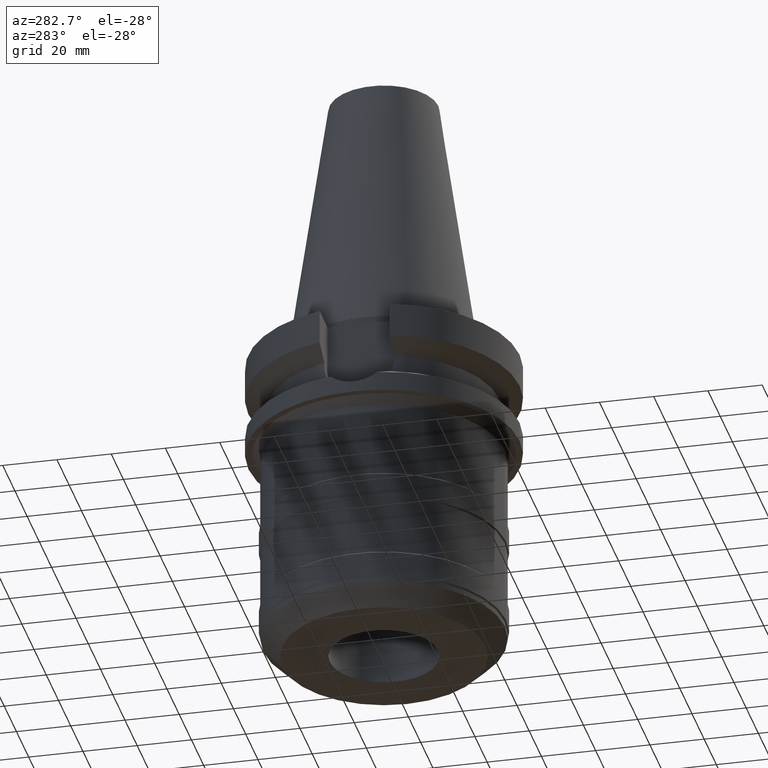
[diagram: clean part render]
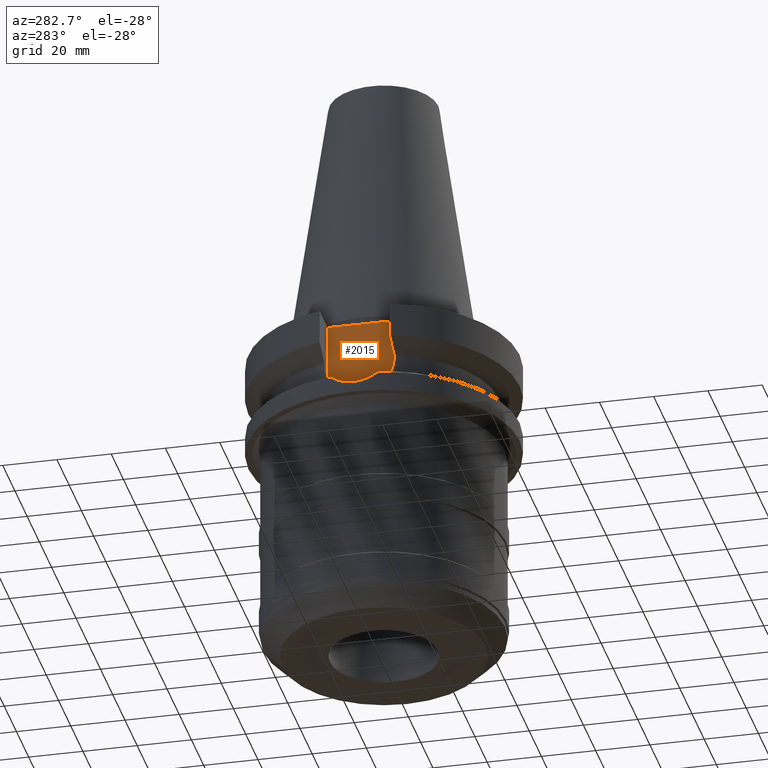
[diagram: same view with one face highlighted and labeled with its STEP entity id]
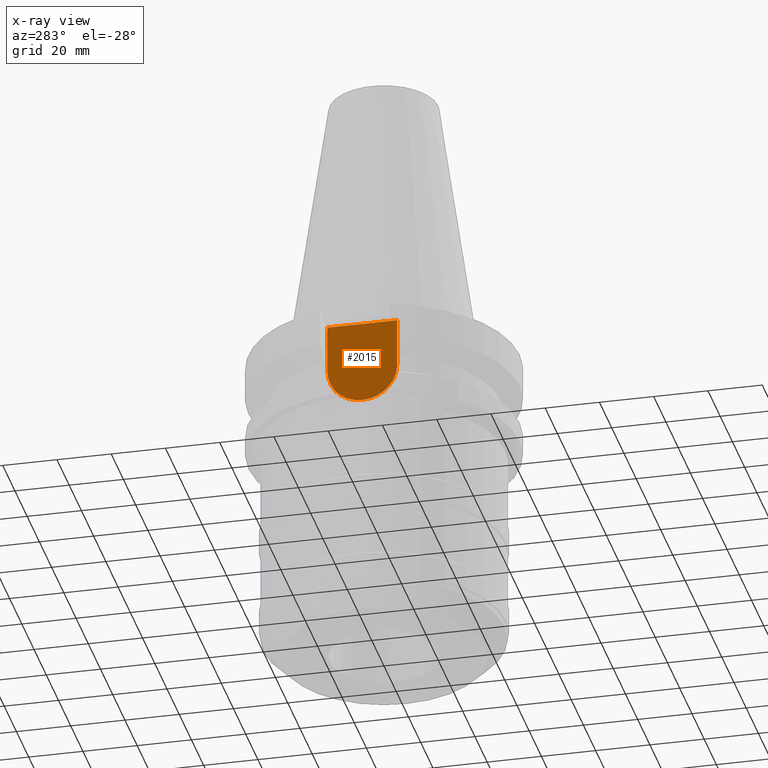
[diagram: x-ray of the same camera — body ghosted, the highlighted face saturated]
A machine part, auxiliary view. The second image highlights one B-rep face of the part: STEP entity #2015.
The next image is the same camera in x-ray: the body ghosted, the highlighted face saturated — about 0% of this face is hidden behind the body in this view.
In plain terms, the highlighted planar face has unit normal (-1, 0, 0).
Its self-contained STEP definition (entity closure, byte-faithful):
#795=DIRECTION('',(0.E0,1.E0,0.E0));
#796=VECTOR('',#795,2.57E1);
#797=CARTESIAN_POINT('',(-3.54E1,-1.285E1,-3.E0));
#798=LINE('',#797,#796);
#871=DIRECTION('',(0.E0,0.E0,-1.E0));
#872=VECTOR('',#871,1.815E1);
#873=CARTESIAN_POINT('',(-3.54E1,-1.285E1,-3.E0));
#874=LINE('',#873,#872);
#878=CARTESIAN_POINT('',(-3.54E1,1.497743035357E-14,-2.115E1));
#879=DIRECTION('',(1.E0,0.E0,0.E0));
#880=DIRECTION('',(0.E0,-1.E0,0.E0));
#881=AXIS2_PLACEMENT_3D('',#878,#879,#880);
#886=CARTESIAN_POINT('',(-3.54E1,1.497743035357E-14,-2.115E1));
#887=DIRECTION('',(1.E0,0.E0,0.E0));
#888=DIRECTION('',(0.E0,0.E0,-1.E0));
#889=AXIS2_PLACEMENT_3D('',#886,#887,#888);
#894=DIRECTION('',(0.E0,0.E0,1.E0));
#895=VECTOR('',#894,1.815E1);
#896=CARTESIAN_POINT('',(-3.54E1,1.285E1,-2.115E1));
#897=LINE('',#896,#895);
#1247=CARTESIAN_POINT('',(-3.54E1,1.285E1,-2.115E1));
#1248=VERTEX_POINT('',#1247);
#1249=CARTESIAN_POINT('',(-3.54E1,1.576426592202E-14,-3.4E1));
#1250=VERTEX_POINT('',#1249);
#1251=CARTESIAN_POINT('',(-3.54E1,-1.285E1,-2.115E1));
#1252=VERTEX_POINT('',#1251);
#1267=CARTESIAN_POINT('',(-3.54E1,-1.285E1,-3.E0));
#1268=VERTEX_POINT('',#1267);
#1273=CARTESIAN_POINT('',(-3.54E1,1.285E1,-3.E0));
#1274=VERTEX_POINT('',#1273);
#2001=CARTESIAN_POINT('',(-3.54E1,2.015768631397E-14,0.E0));
#2002=DIRECTION('',(-1.E0,0.E0,0.E0));
#2003=DIRECTION('',(0.E0,0.E0,-1.E0));
#2004=AXIS2_PLACEMENT_3D('',#2001,#2002,#2003);
#2005=PLANE('',#2004);
#2006=ORIENTED_EDGE('',*,*,#1974,.F.);
#2008=ORIENTED_EDGE('',*,*,#2007,.T.);
#2009=ORIENTED_EDGE('',*,*,#1876,.T.);
#2010=ORIENTED_EDGE('',*,*,#1874,.T.);
#2012=ORIENTED_EDGE('',*,*,#2011,.T.);
#2013=EDGE_LOOP('',(#2006,#2008,#2009,#2010,#2012));
#2014=FACE_OUTER_BOUND('',#2013,.F.);
#882=CIRCLE('',#881,1.285E1);
#890=CIRCLE('',#889,1.285E1);
#1874=EDGE_CURVE('',#1250,#1248,#890,.T.);
#1876=EDGE_CURVE('',#1252,#1250,#882,.T.);
#1974=EDGE_CURVE('',#1268,#1274,#798,.T.);
#2007=EDGE_CURVE('',#1268,#1252,#874,.T.);
#2011=EDGE_CURVE('',#1248,#1274,#897,.T.);
#2015=ADVANCED_FACE('',(#2014),#2005,.T.);